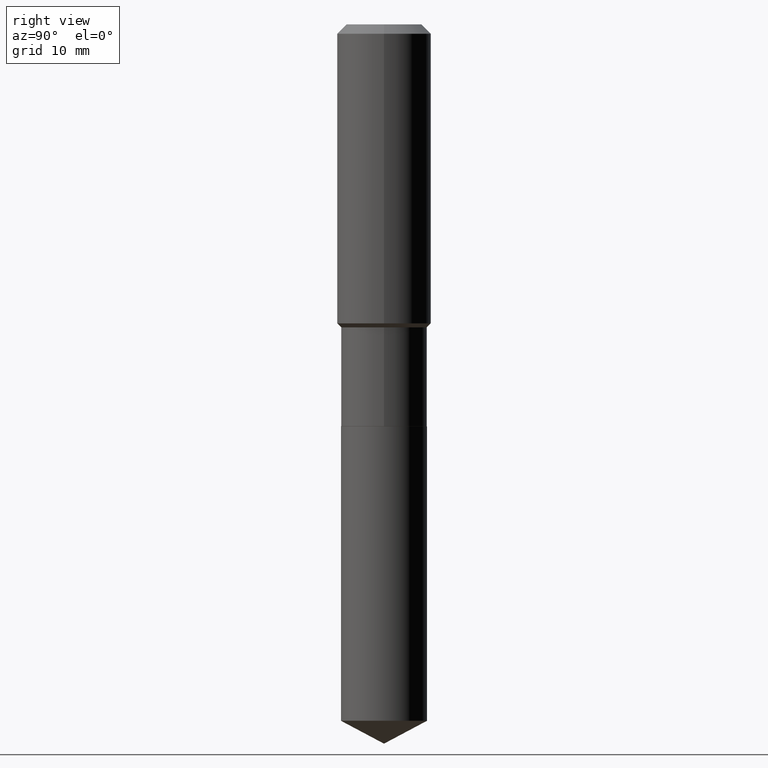
[diagram: clean part render]
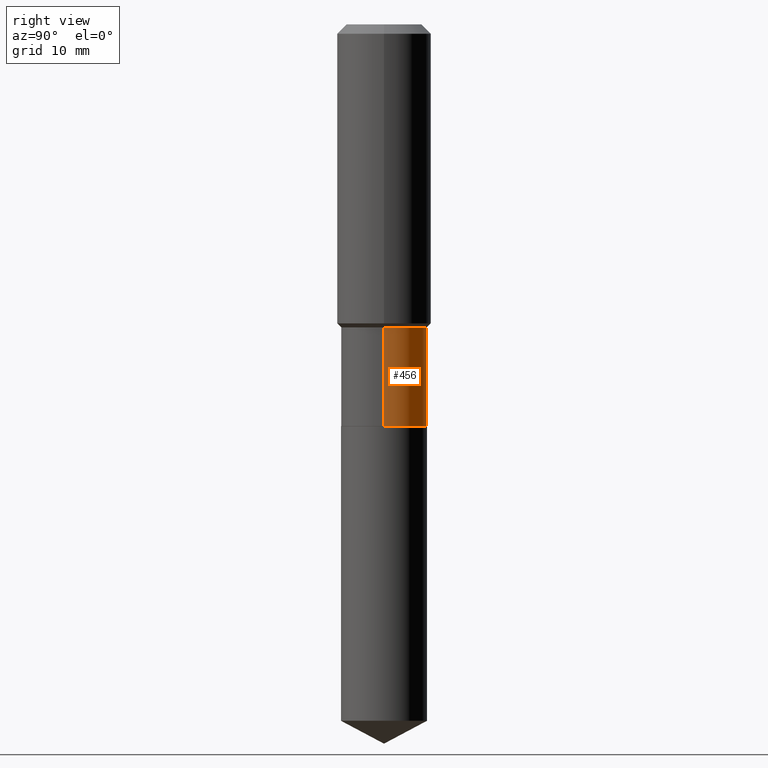
[diagram: same view with one face highlighted and labeled with its STEP entity id]
A machine part, right view. The second image highlights one B-rep face of the part: STEP entity #456.
In plain terms, the highlighted cylindrical surface (partial cylindrical patch) has radius 6.3995 mm, axis along (-0, 0, 1).
Its self-contained STEP definition (entity closure, byte-faithful):
#1 = CARTESIAN_POINT ( 'NONE',  ( 0.000000000000000000, 0.000000000000000000, 0.000000000000000000 ) ) ;
#9 = VECTOR ( 'NONE', #23, 39.37007874015748143 ) ;
#23 = DIRECTION ( 'NONE',  ( -2.445468806185136877E-29, 3.491481338843145188E-15, 1.000000000000000000 ) ) ;
#53 = EDGE_LOOP ( 'NONE', ( #109, #462, #228, #361 ) ) ;
#60 = LINE ( 'NONE', #357, #9 ) ;
#80 = VECTOR ( 'NONE', #417, 39.37007874015748143 ) ;
#83 = FACE_OUTER_BOUND ( 'NONE', #53, .T. ) ;
#85 = DIRECTION ( 'NONE',  ( -2.445468806185136597E-29, 3.491481338843145583E-15, 1.000000000000000000 ) ) ;
#109 = ORIENTED_EDGE ( 'NONE', *, *, #176, .T. ) ;
#122 = EDGE_CURVE ( 'NONE', #254, #465, #60, .T. ) ;
#132 = CARTESIAN_POINT ( 'NONE',  ( 5.756144475998575397E-29, -8.218248775368998366E-15, -2.353800000000000558 ) ) ;
#139 = AXIS2_PLACEMENT_3D ( 'NONE', #1, #407, #232 ) ;
#176 = EDGE_CURVE ( 'NONE', #254, #356, #429, .T. ) ;
#181 = EDGE_CURVE ( 'NONE', #356, #188, #192, .T. ) ;
#184 = CIRCLE ( 'NONE', #258, 0.2519499999999999518 ) ;
#188 = VERTEX_POINT ( 'NONE', #451 ) ;
#192 = LINE ( 'NONE', #195, #80 ) ;
#195 = CARTESIAN_POINT ( 'NONE',  ( -0.2519499999999999518, 1.790212422747572076E-15, -1.239325695989723260E-29 ) ) ;
#198 = CARTESIAN_POINT ( 'NONE',  ( 4.340218037217380899E-29, -6.196681080178815981E-15, -1.774800000000000155 ) ) ;
#214 = AXIS2_PLACEMENT_3D ( 'NONE', #132, #411, #339 ) ;
#228 = ORIENTED_EDGE ( 'NONE', *, *, #272, .F. ) ;
#232 = DIRECTION ( 'NONE',  ( 1.000000000000000000, -6.982962677686267499E-15, 4.876176775795935793E-29 ) ) ;
#234 = DIRECTION ( 'NONE',  ( 1.000000000000000000, -6.982962677686267499E-15, 0.000000000000000000 ) ) ;
#254 = VERTEX_POINT ( 'NONE', #416 ) ;
#258 = AXIS2_PLACEMENT_3D ( 'NONE', #198, #85, #234 ) ;
#272 = EDGE_CURVE ( 'NONE', #465, #188, #184, .T. ) ;
#339 = DIRECTION ( 'NONE',  ( 1.000000000000000000, -6.982962677686269077E-15, 0.000000000000000000 ) ) ;
#356 = VERTEX_POINT ( 'NONE', #464 ) ;
#357 = CARTESIAN_POINT ( 'NONE',  ( 0.2519499999999999518, -1.759357446643054800E-15, 1.228552738661785732E-29 ) ) ;
#361 = ORIENTED_EDGE ( 'NONE', *, *, #122, .F. ) ;
#407 = DIRECTION ( 'NONE',  ( -2.445468806185136597E-29, 3.491481338843145583E-15, 1.000000000000000000 ) ) ;
#411 = DIRECTION ( 'NONE',  ( -2.445468806185136597E-29, 3.491481338843145583E-15, 1.000000000000000000 ) ) ;
#416 = CARTESIAN_POINT ( 'NONE',  ( 0.2519500000000000073, -9.977606222012053561E-15, -2.353800000000000558 ) ) ;
#417 = DIRECTION ( 'NONE',  ( -2.445468806185136877E-29, 3.491481338843145188E-15, 1.000000000000000000 ) ) ;
#429 = CIRCLE ( 'NONE', #214, 0.2519500000000000073 ) ;
#448 = CARTESIAN_POINT ( 'NONE',  ( 0.2519499999999999518, -7.956038526821870387E-15, -1.774800000000000155 ) ) ;
#451 = CARTESIAN_POINT ( 'NONE',  ( -0.2519499999999999518, -5.417252505026335098E-15, -1.774800000000000155 ) ) ;
#456 = ADVANCED_FACE ( 'NONE', ( #83 ), #489, .T. ) ;
#462 = ORIENTED_EDGE ( 'NONE', *, *, #181, .T. ) ;
#464 = CARTESIAN_POINT ( 'NONE',  ( -0.2519500000000000073, -5.417252505026335098E-15, -2.353800000000000558 ) ) ;
#465 = VERTEX_POINT ( 'NONE', #448 ) ;
#489 = CYLINDRICAL_SURFACE ( 'NONE', #139, 0.2519499999999999518 ) ;